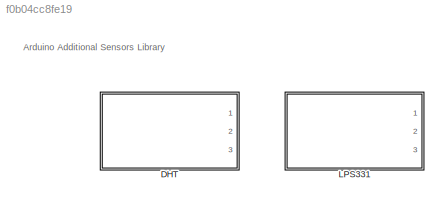
MODEL slx_f0b04cc8fe19
KIND library
CONFIG AbsTol = auto
CONFIG EnableMultiTasking = off
CONFIG FixedStep = auto
CONFIG MaxStep = auto
CONFIG MinStep = auto
CONFIG RelTol = 1e-3
CONFIG SampleTimeConstraint = Unconstrained
CONFIG Solver = VariableStepAuto
CONFIG SolverName = VariableStepAuto
CONFIG StartTime = 0.0
CONFIG StopTime = 10.0
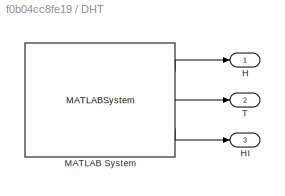
BLOCK [SubSystem] DHT
  Ports = [0, 3]
  RequestExecContextInheritance = off
  Variant = off
BLOCK [Outport] DHT/H
  IconDisplay = Port number
BLOCK [Outport] DHT/HI
  IconDisplay = Port number
  Port = 3
BLOCK [MATLABSystem] DHT/MATLAB System
  F = F
  MaskDisplay = disp('read_dht');\nport_label('output',1,'H');\nport_label('output',2,'T');\nport_label('output',3,'HI');
  MaskType = read_dht
  Pin = Pin
  Ports = [0, 3]
  SampleTime = Ts
  Sensor = Tp
  System = read_dht
BLOCK [Outport] DHT/T
  IconDisplay = Port number
  Port = 2
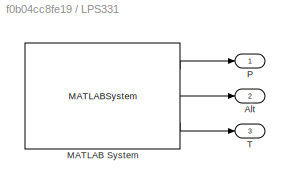
BLOCK [SubSystem] LPS331
  Ports = [0, 3]
  RequestExecContextInheritance = off
  Variant = off
BLOCK [Outport] LPS331/Alt
  IconDisplay = Port number
  Port = 2
BLOCK [MATLABSystem] LPS331/MATLAB System
  Imp = Imp
  MaskDisplay = disp('read_lps');\nport_label('output',1,'P');\nport_label('output',2,'Alt');\nport_label('output',3,'T');
  MaskType = read_lps
  Ports = [0, 3]
  SampleTime = Ts
  System = read_lps
BLOCK [Outport] LPS331/P
  IconDisplay = Port number
BLOCK [Outport] LPS331/T
  IconDisplay = Port number
  Port = 3
ANNOTATION (root): Arduino Additional Sensors Library
LINE DHT/MATLAB System:1 -> DHT/H:1
LINE DHT/MATLAB System:2 -> DHT/T:1
LINE DHT/MATLAB System:3 -> DHT/HI:1
LINE LPS331/MATLAB System:1 -> LPS331/P:1
LINE LPS331/MATLAB System:2 -> LPS331/Alt:1
LINE LPS331/MATLAB System:3 -> LPS331/T:1
